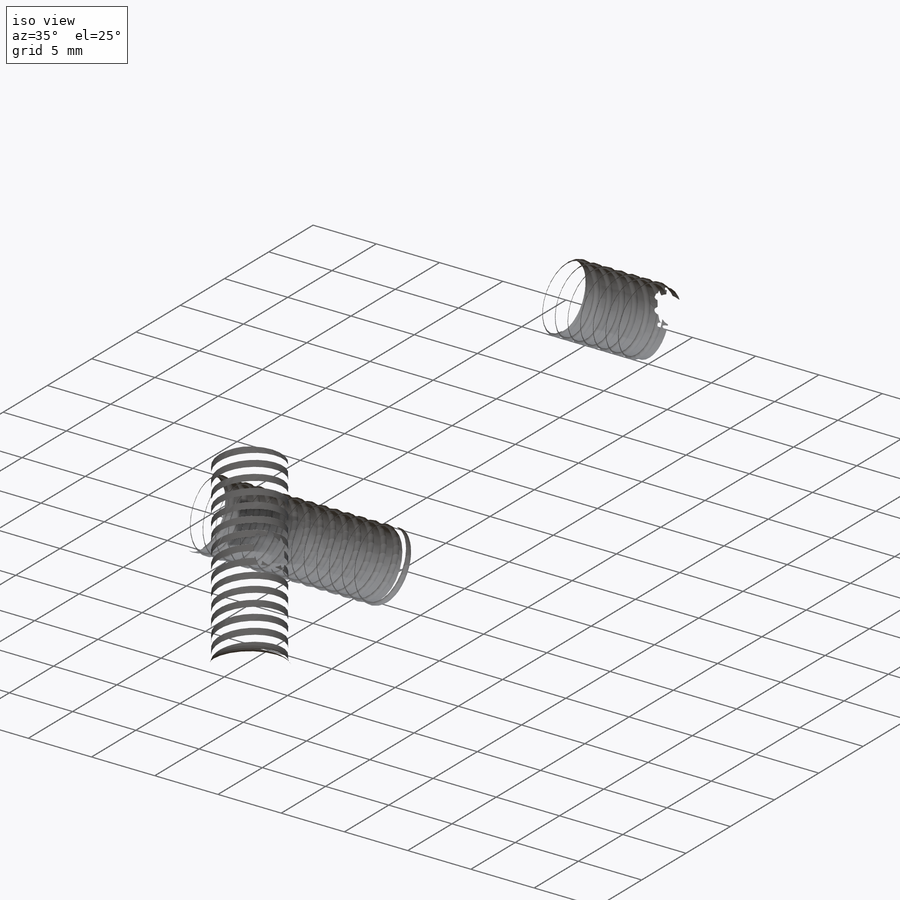
[diagram: iso view]
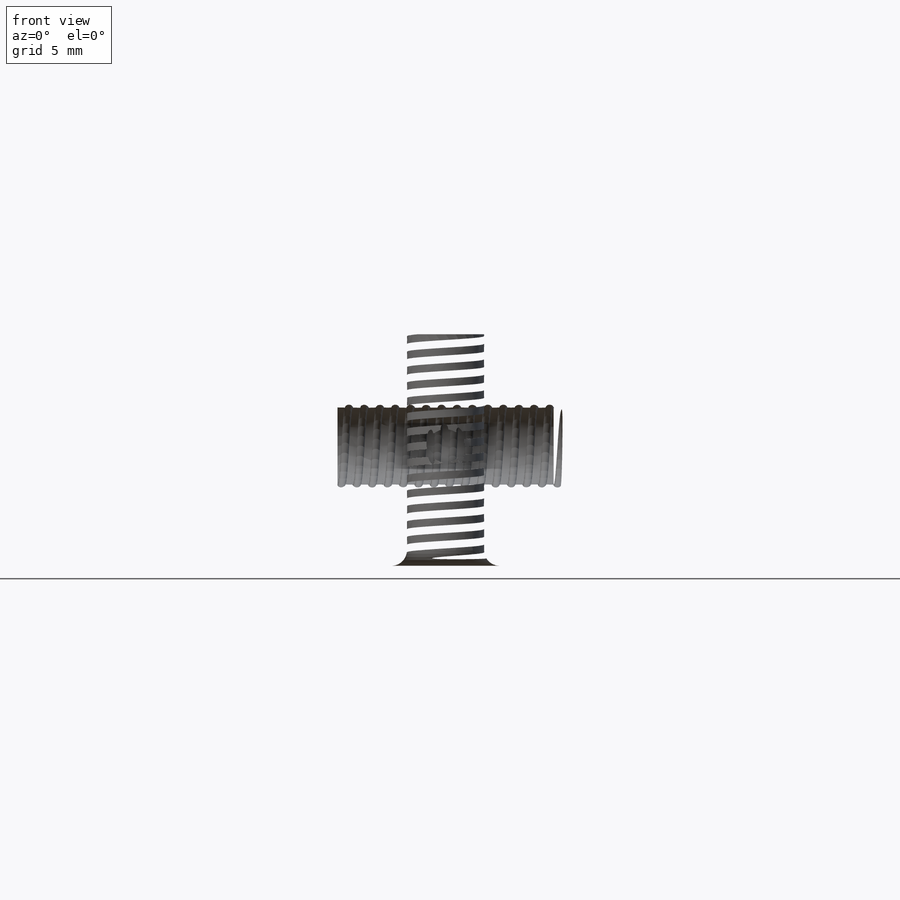
[diagram: front view]
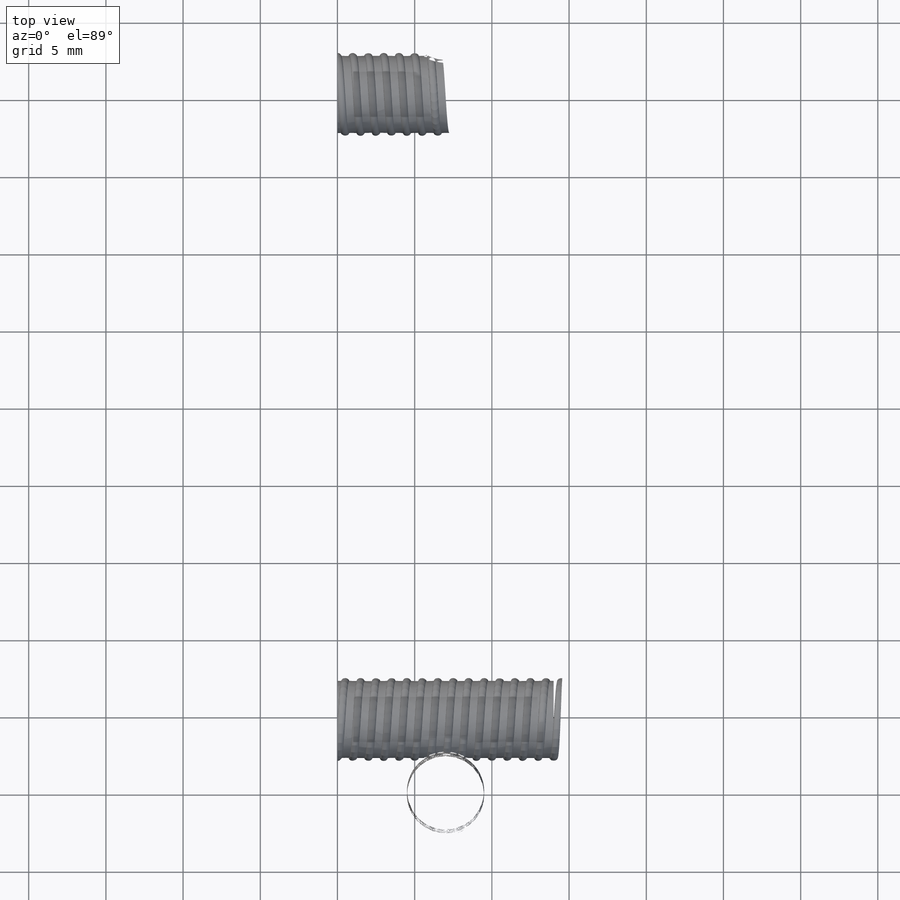
[diagram: top view]
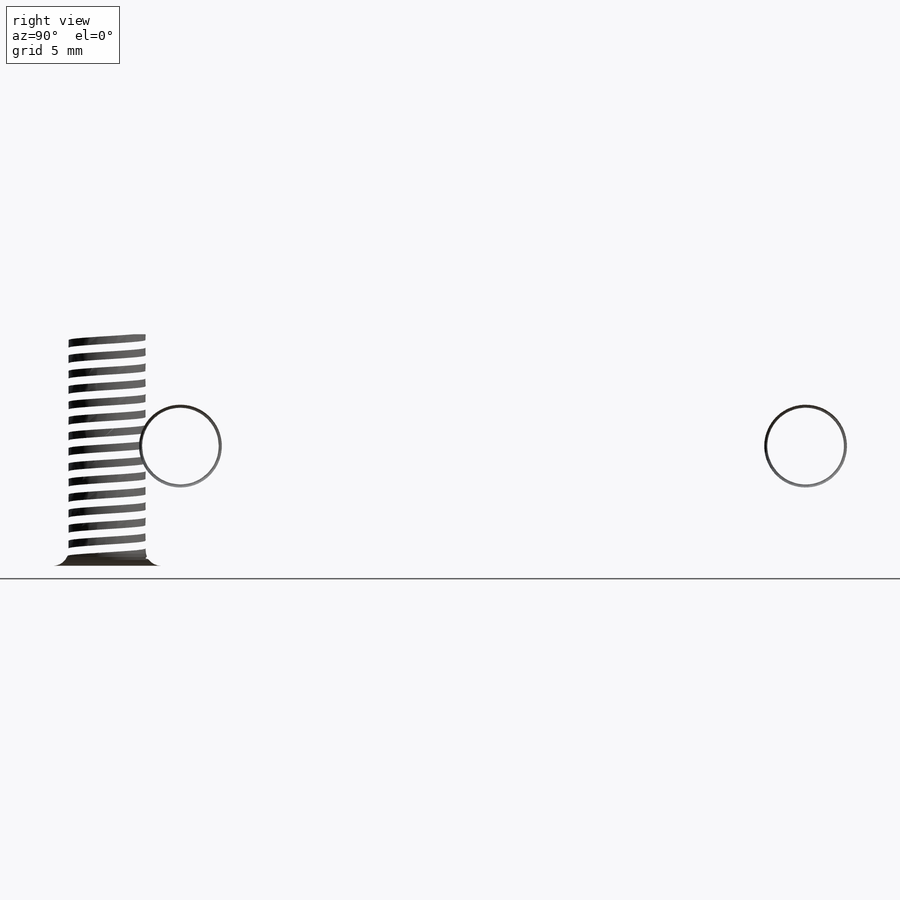
[diagram: right view]
SOLIDWORKS PART (.sldprt)
format: sldprt  version: not decoded by parser v0  size: 3,773,440 bytes
history: native  units: mm
features: sketch x9, cut_extrude x4, mirror x3, fillet x2, helix x2, plane x2, sweep x2, pattern_circular x2, material x1, extrude x1 (+11 scaffold rows collapsed)
feature tree (39):
  scaffold x11  (default folders/planes/origin — collapsed)
  material  "Material <not specified>"
  sketch  "Sketch1"  dims[D9=47.0mm D1=68.0mm D2=34.0mm D3=56.0mm D4=9.0mm D5=9.0mm D6=9.0mm D7=9.0mm D8=28.0mm]
  extrude  "Boss-Extrude1"  Depth=40mm
  sketch  "Sketch2"  dims[c1.D3=5.0mm c1.D1=~87.814335mm c2.D1=45.0deg c2.D2=~106.386224mm c3.D2=45.0deg]
  cut_extrude  "Cut-Extrude1"  Depth=15mm
  fillet  "Fillet1"  Radius=1mm
  sketch  "Sketch3"
  helix  "Helix/Spiral1"  Pitch=15mm
  plane  "Plane1"
  sketch  "Sketch4"  dims[D1=0.5mm]
  sweep  "Cut-Sweep1"
  pattern_circular  "CirPattern1"  Count=2 Angle=45deg
  pattern_circular  "CirPattern2"  Count=2 Angle=315deg
  mirror  "Mirror1"
  sketch  "Sketch5"
  cut_extrude  "Cut-Extrude2"  Depth=2mm
  sketch  "Sketch6"
  cut_extrude  "Cut-Extrude3"  Depth=2mm
  sketch  "Sketch7"  dims[D5=5.0mm D1=12.0mm D2=12.0mm D3=25.0mm D4=25.0mm]
  cut_extrude  "Cut-Extrude4"  Depth=15mm
  fillet  "Fillet2"  Radius=1mm
  sketch  "Sketch8"
  helix  "Helix/Spiral2"  Pitch=15mm
  plane  "Plane2"
  sketch  "Sketch9"  dims[D1=0.5mm]
  sweep  "Cut-Sweep2"
  mirror  "Mirror2"
  mirror  "Mirror3"
decode coverage: 16 of 25 modeling features carry decoded parameters
note: ~ marks probable driven/reference dimensions
note: suppression state not decoded; provenance and decode notes live in map.json
